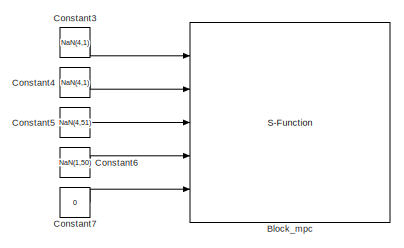
[diagram: root canvas - part 1/2, left side, full height]
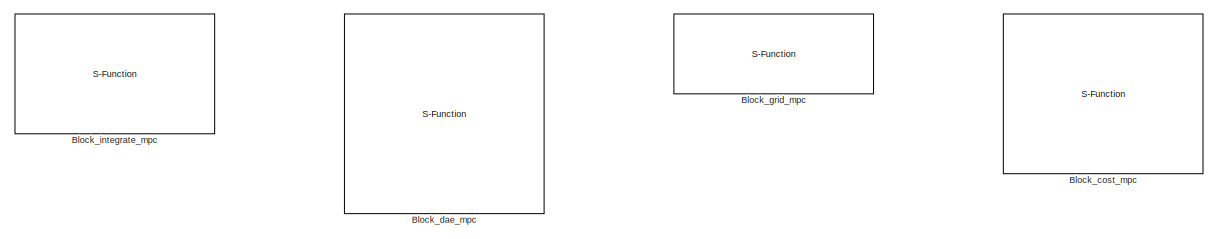
[diagram: root canvas - part 2/2, center side, full height]
MODEL slx_11a94051fb46
KIND library
CONFIG AbsTol = auto
CONFIG EnableMultiTasking = off
CONFIG FixedStep = auto
CONFIG MaxStep = auto
CONFIG MinStep = auto
CONFIG RelTol = 1e-3
CONFIG SampleTimeConstraint = Unconstrained
CONFIG Solver = VariableStepAuto
CONFIG SolverName = VariableStepAuto
CONFIG StartTime = 0.0
CONFIG StopTime = 10.0
BLOCK [S-Function] Block_cost_mpc
  EnableBusSupport = off
  FunctionName = cost_mpc_s_function_level2
  Ports = [4, 1]
  SFcnIsStateOwnerBlock = off
  SFunctionDeploymentMode = off
BLOCK [S-Function] Block_dae_mpc
  EnableBusSupport = off
  FunctionName = dae_mpc_s_function_level2
  Ports = [5, 2]
  SFcnIsStateOwnerBlock = off
  SFunctionDeploymentMode = off
BLOCK [S-Function] Block_grid_mpc
  EnableBusSupport = off
  FunctionName = grid_mpc_s_function_level2
  Ports = [2, 1]
  SFcnIsStateOwnerBlock = off
  SFunctionDeploymentMode = off
BLOCK [S-Function] Block_integrate_mpc
  EnableBusSupport = off
  FunctionName = integrate_mpc_s_function_level2
  Ports = [3, 1]
  SFcnIsStateOwnerBlock = off
  SFunctionDeploymentMode = off
BLOCK [S-Function] Block_mpc
  EnableBusSupport = off
  FunctionName = mpc_s_function_level2
  InitFcn = solver_stats_bus = Simulink.Bus;\nelements = {};\ne = Simulink.BusElement;\ne.Name = 'sqp_stop_crit';\ne.DataType = 'int32';\nelements{end+1} = e;\ne = Simulink.BusElement;\ne.Name = 'n_sqp_iter';\ne.DataType = 'int32';\nelements{end+1} = e;\ne = Simulink.BusElement;\ne.Name = 'n_ls';\ne.DataType = 'int32';\nelements{end+1} = e;\ne = Simulink.BusElement;\ne.Name = 'n_max_ls';\ne.DataType = 'int32';\nelements{end+1...<+322ch>
  Ports = [5, 3]
  SFcnIsStateOwnerBlock = off
  SFunctionDeploymentMode = off
  SFunctionModules = 'mpc_codegen mpc'
BLOCK [Constant] Constant3
  Value = NaN(4,1)
  VectorParams1D = off
BLOCK [Constant] Constant4
  Value = NaN(4,1)
  VectorParams1D = off
BLOCK [Constant] Constant5
  Value = NaN(4,51)
  VectorParams1D = off
BLOCK [Constant] Constant6
  Value = NaN(1,50)
  VectorParams1D = off
BLOCK [Constant] Constant7
  Value = 0
  VectorParams1D = off
LINE Constant3:1 -> Block_mpc:1
LINE Constant4:1 -> Block_mpc:2
LINE Constant5:1 -> Block_mpc:3
LINE Constant6:1 -> Block_mpc:4
LINE Constant7:1 -> Block_mpc:5
